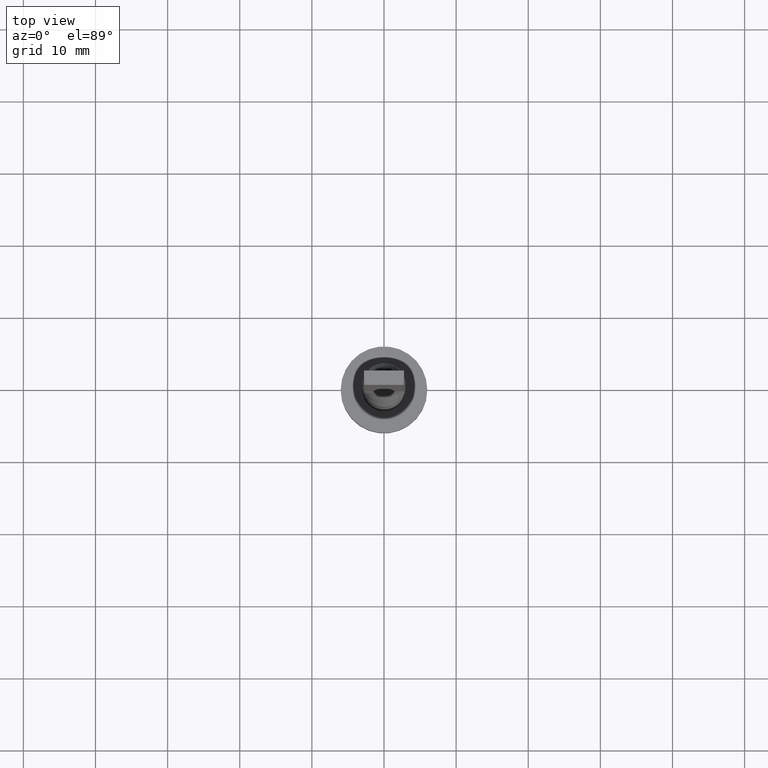
[diagram: clean part render]
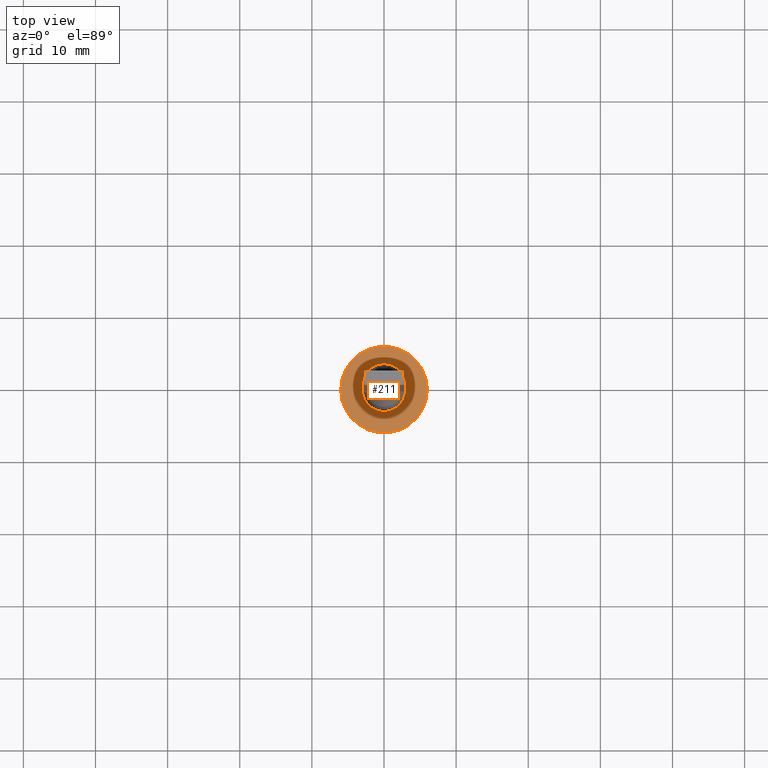
[diagram: same view with one face highlighted and labeled with its STEP entity id]
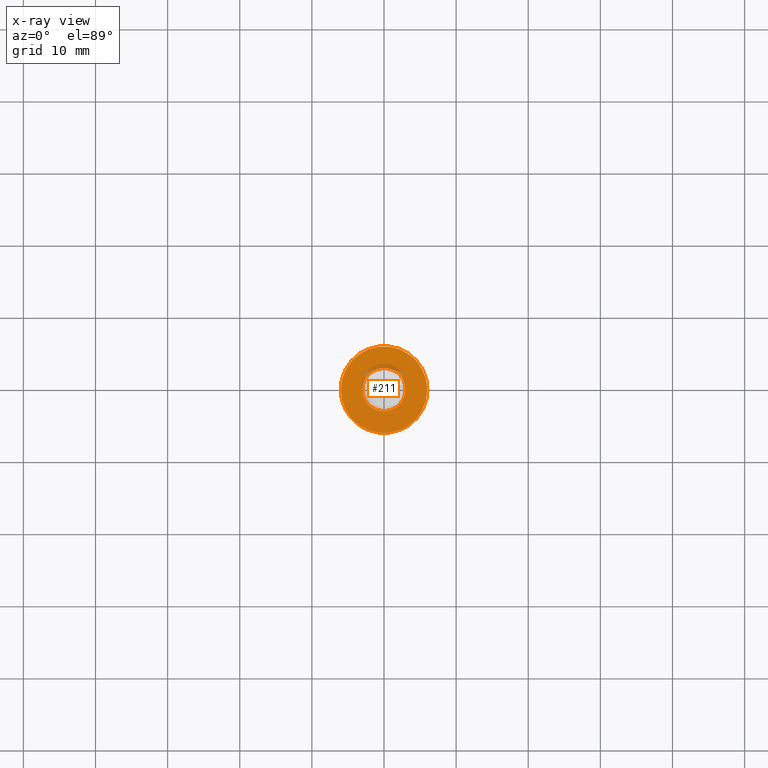
[diagram: x-ray of the same camera — body ghosted, the highlighted face saturated]
A machine part, top view. The second image highlights one B-rep face of the part: STEP entity #211.
The next image is the same camera in x-ray: the body ghosted, the highlighted face saturated — about 5% of this face is hidden behind the body in this view.
In plain terms, the highlighted planar face has unit normal (0, 0, 1).
Its self-contained STEP definition (entity closure, byte-faithful):
#25 = CARTESIAN_POINT ( 'NONE',  ( 0.000000000000000000, 0.000000000000000000, 5.000000000000000000 ) ) ;
#32 = VERTEX_POINT ( 'NONE', #358 ) ;
#45 = AXIS2_PLACEMENT_3D ( 'NONE', #169, #533, #166 ) ;
#46 = CARTESIAN_POINT ( 'NONE',  ( -3.000000000000000444, 0.000000000000000000, 5.000000000000000000 ) ) ;
#56 = CIRCLE ( 'NONE', #45, 3.000000000000000444 ) ;
#106 = VERTEX_POINT ( 'NONE', #46 ) ;
#112 = DIRECTION ( 'NONE',  ( 1.000000000000000000, 0.000000000000000000, 0.000000000000000000 ) ) ;
#125 = AXIS2_PLACEMENT_3D ( 'NONE', #304, #489, #112 ) ;
#159 = DIRECTION ( 'NONE',  ( 1.000000000000000000, 0.000000000000000000, 0.000000000000000000 ) ) ;
#164 = EDGE_CURVE ( 'NONE', #32, #106, #56, .T. ) ;
#166 = DIRECTION ( 'NONE',  ( 1.000000000000000000, 0.000000000000000000, 0.000000000000000000 ) ) ;
#169 = CARTESIAN_POINT ( 'NONE',  ( 0.000000000000000000, 0.000000000000000000, 5.000000000000000000 ) ) ;
#185 = CARTESIAN_POINT ( 'NONE',  ( 0.000000000000000000, 0.000000000000000000, 5.000000000000000000 ) ) ;
#211 = ADVANCED_FACE ( 'NONE', ( #466, #233 ), #288, .T. ) ;
#223 = VERTEX_POINT ( 'NONE', #470 ) ;
#232 = EDGE_CURVE ( 'NONE', #549, #223, #406, .T. ) ;
#233 = FACE_OUTER_BOUND ( 'NONE', #502, .T. ) ;
#240 = AXIS2_PLACEMENT_3D ( 'NONE', #185, #423, #510 ) ;
#261 = ORIENTED_EDGE ( 'NONE', *, *, #164, .F. ) ;
#278 = ORIENTED_EDGE ( 'NONE', *, *, #232, .T. ) ;
#288 = PLANE ( 'NONE',  #240 ) ;
#293 = EDGE_CURVE ( 'NONE', #223, #549, #484, .T. ) ;
#304 = CARTESIAN_POINT ( 'NONE',  ( 0.000000000000000000, 0.000000000000000000, 5.000000000000000000 ) ) ;
#337 = DIRECTION ( 'NONE',  ( 1.000000000000000000, 0.000000000000000000, 0.000000000000000000 ) ) ;
#358 = CARTESIAN_POINT ( 'NONE',  ( 3.000000000000000444, 3.673940397442060361E-16, 5.000000000000000000 ) ) ;
#366 = CARTESIAN_POINT ( 'NONE',  ( 6.000000000000000888, 7.347880794884120722E-16, 5.000000000000000000 ) ) ;
#373 = ORIENTED_EDGE ( 'NONE', *, *, #478, .F. ) ;
#382 = DIRECTION ( 'NONE',  ( 0.000000000000000000, 0.000000000000000000, 1.000000000000000000 ) ) ;
#384 = DIRECTION ( 'NONE',  ( 0.000000000000000000, 0.000000000000000000, 1.000000000000000000 ) ) ;
#385 = EDGE_LOOP ( 'NONE', ( #373, #261 ) ) ;
#401 = AXIS2_PLACEMENT_3D ( 'NONE', #426, #384, #159 ) ;
#406 = CIRCLE ( 'NONE', #574, 6.000000000000000888 ) ;
#423 = DIRECTION ( 'NONE',  ( 0.000000000000000000, 0.000000000000000000, 1.000000000000000000 ) ) ;
#426 = CARTESIAN_POINT ( 'NONE',  ( 0.000000000000000000, 0.000000000000000000, 5.000000000000000000 ) ) ;
#463 = CIRCLE ( 'NONE', #401, 3.000000000000000444 ) ;
#466 = FACE_BOUND ( 'NONE', #385, .T. ) ;
#470 = CARTESIAN_POINT ( 'NONE',  ( -6.000000000000000888, 0.000000000000000000, 5.000000000000000000 ) ) ;
#478 = EDGE_CURVE ( 'NONE', #106, #32, #463, .T. ) ;
#484 = CIRCLE ( 'NONE', #125, 6.000000000000000888 ) ;
#489 = DIRECTION ( 'NONE',  ( 0.000000000000000000, 0.000000000000000000, 1.000000000000000000 ) ) ;
#502 = EDGE_LOOP ( 'NONE', ( #519, #278 ) ) ;
#510 = DIRECTION ( 'NONE',  ( 1.000000000000000000, 0.000000000000000000, -0.000000000000000000 ) ) ;
#519 = ORIENTED_EDGE ( 'NONE', *, *, #293, .T. ) ;
#533 = DIRECTION ( 'NONE',  ( 0.000000000000000000, 0.000000000000000000, 1.000000000000000000 ) ) ;
#549 = VERTEX_POINT ( 'NONE', #366 ) ;
#574 = AXIS2_PLACEMENT_3D ( 'NONE', #25, #382, #337 ) ;